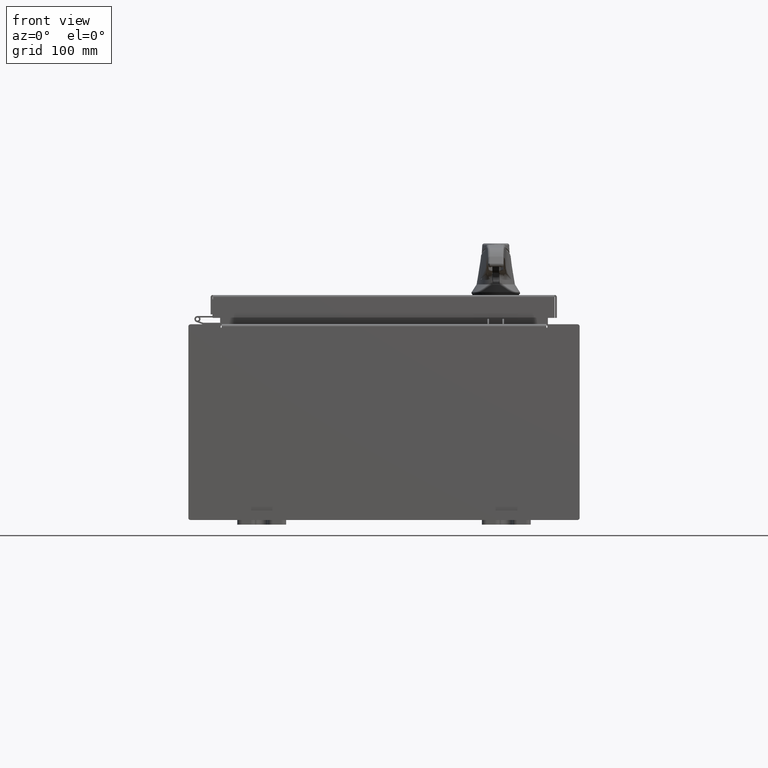
[diagram: clean part render]
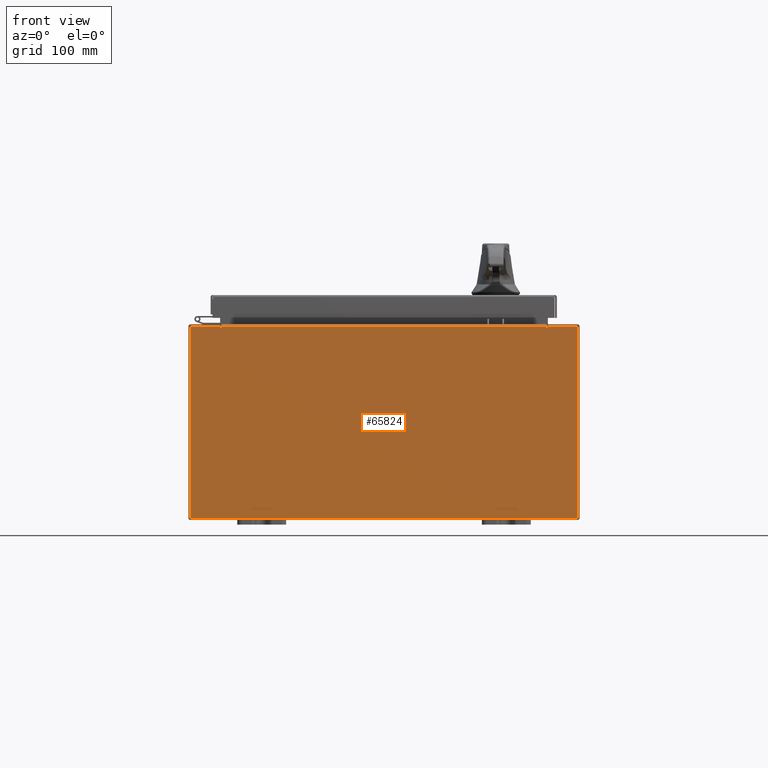
[diagram: same view with one face highlighted and labeled with its STEP entity id]
A machine part, front view. The second image highlights one B-rep face of the part: STEP entity #65824.
In plain terms, the highlighted planar face has unit normal (-0, 1, -0).
Its self-contained STEP definition (entity closure, byte-faithful):
#1116 = PLANE ( 'NONE',  #38732 ) ;
#1546 = VECTOR ( 'NONE', #106048, 39.37007874015748100 ) ;
#2237 = ORIENTED_EDGE ( 'NONE', *, *, #14359, .F. ) ;
#3629 = DIRECTION ( 'NONE',  ( 0.0000000000000000000, 0.0000000000000000000, 1.000000000000000000 ) ) ;
#4588 = CARTESIAN_POINT ( 'NONE',  ( -6.637200000000000900, -1.707404996040164500E-016, 3.912299999999999200 ) ) ;
#5710 = VERTEX_POINT ( 'NONE', #39066 ) ;
#6983 = ORIENTED_EDGE ( 'NONE', *, *, #97988, .F. ) ;
#7103 = EDGE_CURVE ( 'NONE', #48847, #72394, #89331, .T. ) ;
#10972 = CARTESIAN_POINT ( 'NONE',  ( -6.637200000000000900, -1.707404996040164500E-016, 3.912299999999999200 ) ) ;
#11232 = ORIENTED_EDGE ( 'NONE', *, *, #34624, .F. ) ;
#12043 = ORIENTED_EDGE ( 'NONE', *, *, #30531, .T. ) ;
#12682 = EDGE_LOOP ( 'NONE', ( #11232, #2237, #6983, #96692, #98952, #47123, #58288, #12043, #90291, #20873, #92131, #96158 ) ) ;
#14359 = EDGE_CURVE ( 'NONE', #52195, #65960, #47900, .T. ) ;
#15718 = VERTEX_POINT ( 'NONE', #65510 ) ;
#18368 = DIRECTION ( 'NONE',  ( -0.0000000000000000000, 1.000000000000000000, -0.0000000000000000000 ) ) ;
#18839 = AXIS2_PLACEMENT_3D ( 'NONE', #71651, #21103, #80143 ) ;
#20873 = ORIENTED_EDGE ( 'NONE', *, *, #61697, .T. ) ;
#21103 = DIRECTION ( 'NONE',  ( -0.0000000000000000000, 1.000000000000000000, -0.0000000000000000000 ) ) ;
#21609 = CARTESIAN_POINT ( 'NONE',  ( 6.637199999999999100, 0.0000000000000000000, 0.0000000000000000000 ) ) ;
#22893 = VECTOR ( 'NONE', #48466, 39.37007874015748100 ) ;
#25112 = VERTEX_POINT ( 'NONE', #65769 ) ;
#25460 = CARTESIAN_POINT ( 'NONE',  ( -7.925300000000000000, 0.0000000000000000000, 3.925299999999999100 ) ) ;
#26576 = DIRECTION ( 'NONE',  ( 0.0000000000000000000, -0.0000000000000000000, -1.000000000000000000 ) ) ;
#26633 = LINE ( 'NONE', #21609, #1546 ) ;
#26866 = EDGE_CURVE ( 'NONE', #103557, #25112, #40467, .T. ) ;
#29400 = AXIS2_PLACEMENT_3D ( 'NONE', #68871, #18368, #77373 ) ;
#30531 = EDGE_CURVE ( 'NONE', #15718, #5710, #84988, .T. ) ;
#33108 = EDGE_CURVE ( 'NONE', #5710, #92544, #39973, .T. ) ;
#33564 = CARTESIAN_POINT ( 'NONE',  ( 7.925300000000000000, 0.0000000000000000000, 3.925299999999999100 ) ) ;
#34134 = VECTOR ( 'NONE', #88431, 39.37007874015748100 ) ;
#34258 = EDGE_CURVE ( 'NONE', #15718, #48847, #49088, .T. ) ;
#34624 = EDGE_CURVE ( 'NONE', #65960, #51216, #70152, .T. ) ;
#34691 = CARTESIAN_POINT ( 'NONE',  ( 0.0000000000000000000, 0.0000000000000000000, 0.0000000000000000000 ) ) ;
#35802 = CARTESIAN_POINT ( 'NONE',  ( -7.925300000000000000, 0.0000000000000000000, -3.925300000000000500 ) ) ;
#36344 = CARTESIAN_POINT ( 'NONE',  ( 7.925300000000000000, 0.0000000000000000000, -3.925300000000000500 ) ) ;
#37819 = VECTOR ( 'NONE', #101349, 39.37007874015748100 ) ;
#38212 = EDGE_CURVE ( 'NONE', #79863, #88311, #102702, .T. ) ;
#38732 = AXIS2_PLACEMENT_3D ( 'NONE', #34691, #77108, #26576 ) ;
#39066 = CARTESIAN_POINT ( 'NONE',  ( 7.925300000000000000, 0.0000000000000000000, 3.925299999999999100 ) ) ;
#39973 = LINE ( 'NONE', #33564, #42627 ) ;
#40467 = LINE ( 'NONE', #25460, #37819 ) ;
#42627 = VECTOR ( 'NONE', #58624, 39.37007874015748100 ) ;
#45661 = CARTESIAN_POINT ( 'NONE',  ( -6.674550000000000900, -0.0000000000000000000, 0.0000000000000000000 ) ) ;
#47123 = ORIENTED_EDGE ( 'NONE', *, *, #7103, .F. ) ;
#47900 = CIRCLE ( 'NONE', #18839, 0.01867500000000003900 ) ;
#48012 = CARTESIAN_POINT ( 'NONE',  ( -7.925300000000000000, 0.0000000000000000000, -3.925300000000000500 ) ) ;
#48014 = CARTESIAN_POINT ( 'NONE',  ( 6.637199999999999100, 0.0000000000000000000, 3.912299999999999200 ) ) ;
#48197 = CARTESIAN_POINT ( 'NONE',  ( -6.674550000000000900, 0.0000000000000000000, 3.874949999999999200 ) ) ;
#48466 = DIRECTION ( 'NONE',  ( 1.000000000000000000, 0.0000000000000000000, 0.0000000000000000000 ) ) ;
#48847 = VERTEX_POINT ( 'NONE', #76035 ) ;
#49088 = LINE ( 'NONE', #80893, #66233 ) ;
#51216 = VERTEX_POINT ( 'NONE', #91720 ) ;
#52195 = VERTEX_POINT ( 'NONE', #82934 ) ;
#53461 = CARTESIAN_POINT ( 'NONE',  ( -7.925300000000000000, 0.0000000000000000000, 3.925299999999999100 ) ) ;
#55213 = VECTOR ( 'NONE', #69951, 39.37007874015748100 ) ;
#58288 = ORIENTED_EDGE ( 'NONE', *, *, #34258, .F. ) ;
#58624 = DIRECTION ( 'NONE',  ( 0.0000000000000000000, 0.0000000000000000000, -1.000000000000000000 ) ) ;
#61697 = EDGE_CURVE ( 'NONE', #92544, #103557, #108260, .T. ) ;
#65078 = CARTESIAN_POINT ( 'NONE',  ( -7.925300000000000000, 0.0000000000000000000, 3.925299999999999100 ) ) ;
#65510 = CARTESIAN_POINT ( 'NONE',  ( 6.674549999999999100, 0.0000000000000000000, 3.925299999999999100 ) ) ;
#65769 = CARTESIAN_POINT ( 'NONE',  ( -7.925300000000000000, 0.0000000000000000000, 3.925299999999999100 ) ) ;
#65824 = ADVANCED_FACE ( 'NONE', ( #103791 ), #1116, .F. ) ;
#65960 = VERTEX_POINT ( 'NONE', #48197 ) ;
#66233 = VECTOR ( 'NONE', #89334, 39.37007874015748100 ) ;
#67520 = VECTOR ( 'NONE', #3629, 39.37007874015748100 ) ;
#68871 = CARTESIAN_POINT ( 'NONE',  ( 6.655874999999998200, 0.0000000000000000000, 3.874949999999999200 ) ) ;
#69951 = DIRECTION ( 'NONE',  ( 1.000000000000000000, 0.0000000000000000000, 0.0000000000000000000 ) ) ;
#70152 = LINE ( 'NONE', #45661, #67520 ) ;
#71651 = CARTESIAN_POINT ( 'NONE',  ( -6.655875000000000900, 0.0000000000000000000, 3.874949999999999200 ) ) ;
#71855 = LINE ( 'NONE', #53461, #94269 ) ;
#72394 = VERTEX_POINT ( 'NONE', #103029 ) ;
#72981 = EDGE_CURVE ( 'NONE', #25112, #51216, #71855, .T. ) ;
#76035 = CARTESIAN_POINT ( 'NONE',  ( 6.674549999999999100, 0.0000000000000000000, 3.874949999999999200 ) ) ;
#77108 = DIRECTION ( 'NONE',  ( 0.0000000000000000000, -1.000000000000000000, 0.0000000000000000000 ) ) ;
#77373 = DIRECTION ( 'NONE',  ( 0.0000000000000000000, 0.0000000000000000000, -1.000000000000000000 ) ) ;
#78215 = EDGE_CURVE ( 'NONE', #72394, #88311, #26633, .T. ) ;
#78968 = LINE ( 'NONE', #79987, #34134 ) ;
#79863 = VERTEX_POINT ( 'NONE', #4588 ) ;
#79987 = CARTESIAN_POINT ( 'NONE',  ( -6.637200000000000900, -0.0000000000000000000, 0.0000000000000000000 ) ) ;
#80143 = DIRECTION ( 'NONE',  ( 0.0000000000000000000, 0.0000000000000000000, -1.000000000000000000 ) ) ;
#80551 = VECTOR ( 'NONE', #98501, 39.37007874015748100 ) ;
#80893 = CARTESIAN_POINT ( 'NONE',  ( 6.674549999999914700, -0.0000000000000000000, -1.448568502570924200E-013 ) ) ;
#82934 = CARTESIAN_POINT ( 'NONE',  ( -6.637200000000000900, -0.0000000000000000000, 3.874949999999999200 ) ) ;
#84988 = LINE ( 'NONE', #65078, #22893 ) ;
#88311 = VERTEX_POINT ( 'NONE', #48014 ) ;
#88431 = DIRECTION ( 'NONE',  ( 0.0000000000000000000, 0.0000000000000000000, -1.000000000000000000 ) ) ;
#89331 = CIRCLE ( 'NONE', #29400, 0.01867500000000003900 ) ;
#89334 = DIRECTION ( 'NONE',  ( -2.170286390200002500E-014, 0.0000000000000000000, -1.000000000000000000 ) ) ;
#90291 = ORIENTED_EDGE ( 'NONE', *, *, #33108, .T. ) ;
#91720 = CARTESIAN_POINT ( 'NONE',  ( -6.674550000000000900, 0.0000000000000000000, 3.925299999999999100 ) ) ;
#92131 = ORIENTED_EDGE ( 'NONE', *, *, #26866, .T. ) ;
#92544 = VERTEX_POINT ( 'NONE', #36344 ) ;
#94269 = VECTOR ( 'NONE', #103927, 39.37007874015748100 ) ;
#96158 = ORIENTED_EDGE ( 'NONE', *, *, #72981, .T. ) ;
#96692 = ORIENTED_EDGE ( 'NONE', *, *, #38212, .T. ) ;
#97988 = EDGE_CURVE ( 'NONE', #79863, #52195, #78968, .T. ) ;
#98501 = DIRECTION ( 'NONE',  ( -1.000000000000000000, -0.0000000000000000000, -0.0000000000000000000 ) ) ;
#98952 = ORIENTED_EDGE ( 'NONE', *, *, #78215, .F. ) ;
#101349 = DIRECTION ( 'NONE',  ( -0.0000000000000000000, -0.0000000000000000000, 1.000000000000000000 ) ) ;
#102702 = LINE ( 'NONE', #10972, #55213 ) ;
#103029 = CARTESIAN_POINT ( 'NONE',  ( 6.637199999999997300, 0.0000000000000000000, 3.874949999999999200 ) ) ;
#103557 = VERTEX_POINT ( 'NONE', #35802 ) ;
#103791 = FACE_OUTER_BOUND ( 'NONE', #12682, .T. ) ;
#103927 = DIRECTION ( 'NONE',  ( 1.000000000000000000, 0.0000000000000000000, 0.0000000000000000000 ) ) ;
#106048 = DIRECTION ( 'NONE',  ( 0.0000000000000000000, 0.0000000000000000000, 1.000000000000000000 ) ) ;
#108260 = LINE ( 'NONE', #48012, #80551 ) ;